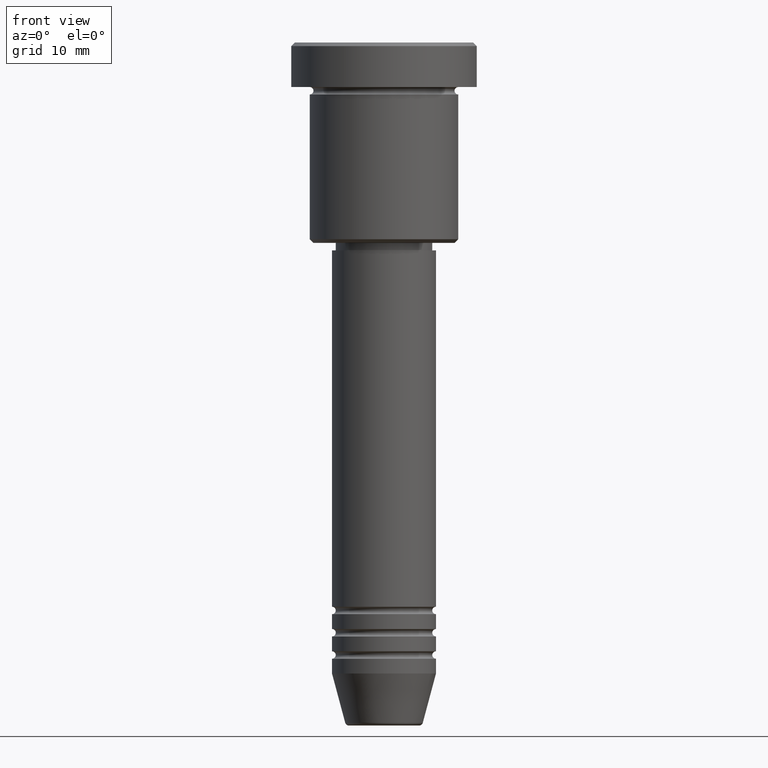
[diagram: clean part render]
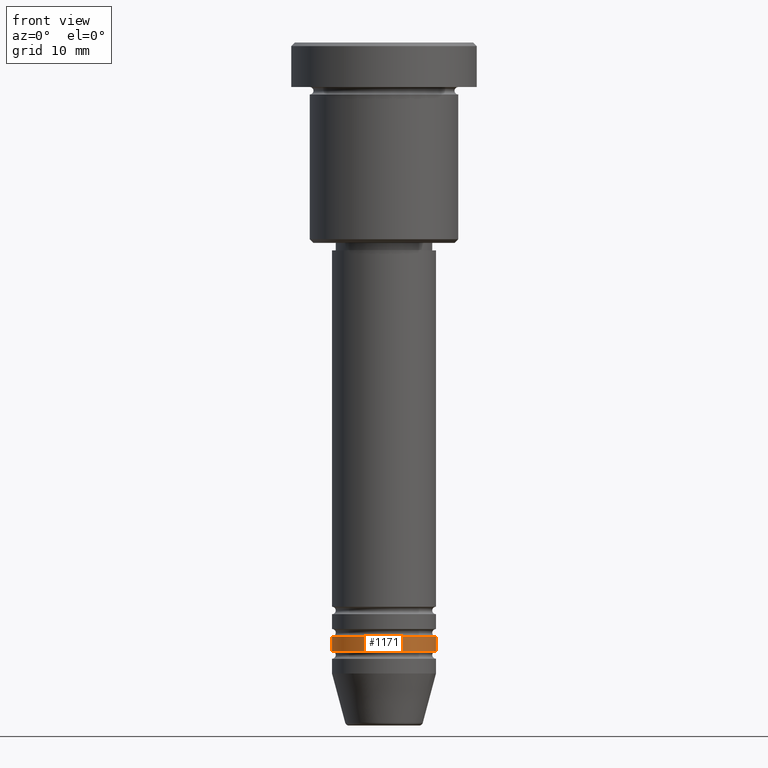
[diagram: same view with one face highlighted and labeled with its STEP entity id]
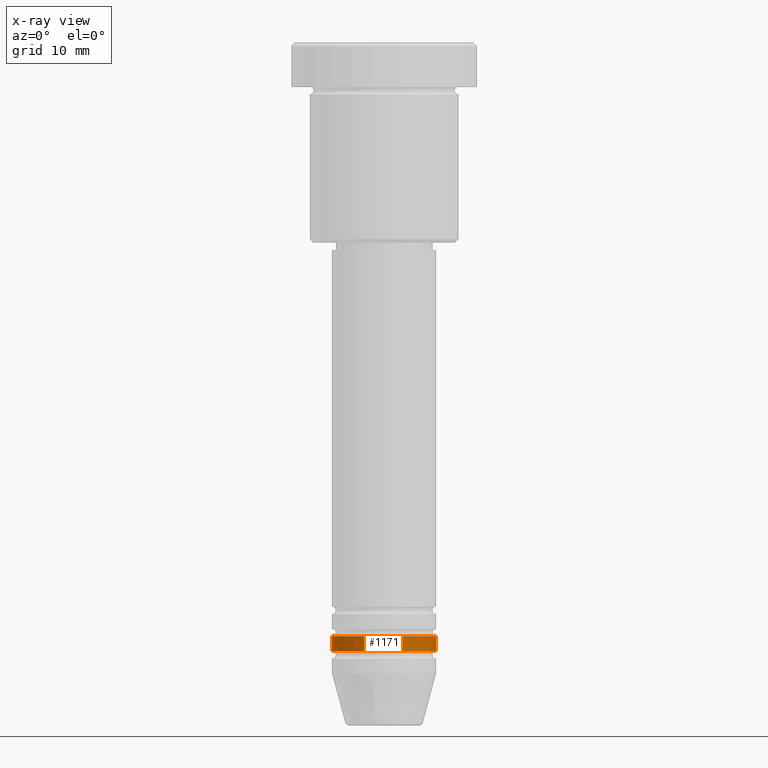
[diagram: x-ray of the same camera — body ghosted, the highlighted face saturated]
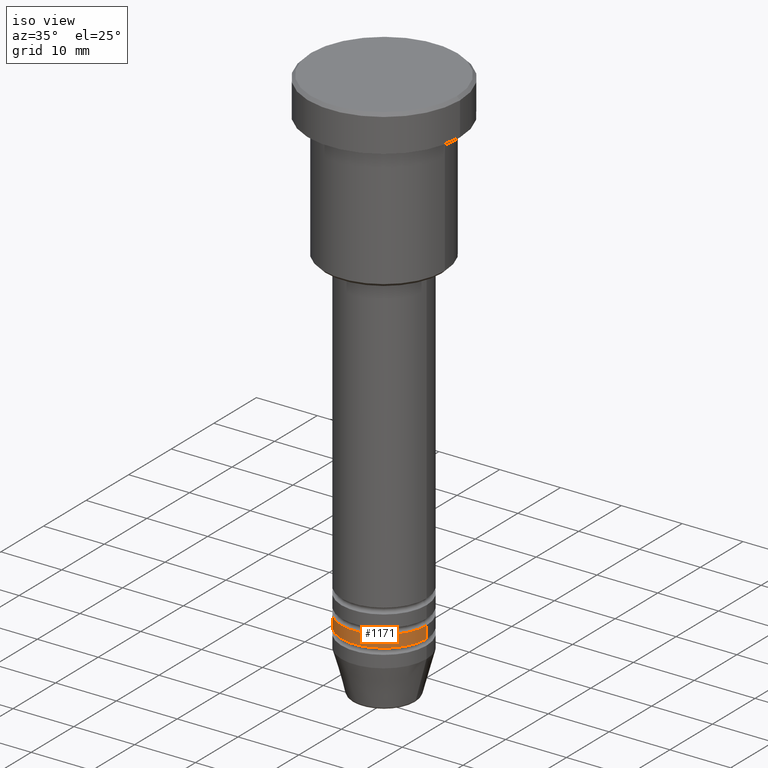
[diagram: same view with one face highlighted and labeled with its STEP entity id]
A machine part, front view. The second image highlights one B-rep face of the part: STEP entity #1171.
The next image is the same camera in x-ray: the body ghosted, the highlighted face saturated — about 0% of this face is hidden behind the body in this view.
A second angle (iso view) of the same face is appended — the face is thin or edge-on in the first view.
In plain terms, the highlighted cylindrical surface (partial cylindrical patch) has radius 7 mm, axis along (-0, -0, 1).
Its self-contained STEP definition (entity closure, byte-faithful):
#7 = EDGE_CURVE ( 'NONE', #562, #1108, #1101, .T. ) ;
#45 = DIRECTION ( 'NONE',  ( 1.000000000000000000, 0.000000000000000000, 0.000000000000000000 ) ) ;
#67 = LINE ( 'NONE', #1150, #336 ) ;
#69 = FACE_OUTER_BOUND ( 'NONE', #101, .T. ) ;
#81 = CARTESIAN_POINT ( 'NONE',  ( -7.000000000000000000, 8.572527594031473190E-16, -79.99999999999997158 ) ) ;
#100 = CARTESIAN_POINT ( 'NONE',  ( -7.000000000000000000, 8.572527594031473190E-16, -81.99999999999997158 ) ) ;
#101 = EDGE_LOOP ( 'NONE', ( #192, #268, #383, #511 ) ) ;
#118 = DIRECTION ( 'NONE',  ( -0.000000000000000000, -0.000000000000000000, 1.000000000000000000 ) ) ;
#140 = DIRECTION ( 'NONE',  ( -0.000000000000000000, -0.000000000000000000, 1.000000000000000000 ) ) ;
#141 = EDGE_CURVE ( 'NONE', #226, #1108, #67, .T. ) ;
#180 = AXIS2_PLACEMENT_3D ( 'NONE', #944, #118, #302 ) ;
#192 = ORIENTED_EDGE ( 'NONE', *, *, #698, .F. ) ;
#198 = DIRECTION ( 'NONE',  ( -0.000000000000000000, -0.000000000000000000, 1.000000000000000000 ) ) ;
#213 = DIRECTION ( 'NONE',  ( -0.000000000000000000, -0.000000000000000000, 1.000000000000000000 ) ) ;
#226 = VERTEX_POINT ( 'NONE', #521 ) ;
#253 = CARTESIAN_POINT ( 'NONE',  ( 0.000000000000000000, 0.000000000000000000, 0.000000000000000000 ) ) ;
#268 = ORIENTED_EDGE ( 'NONE', *, *, #707, .T. ) ;
#302 = DIRECTION ( 'NONE',  ( 1.000000000000000000, 0.000000000000000000, 0.000000000000000000 ) ) ;
#336 = VECTOR ( 'NONE', #349, 1000.000000000000000 ) ;
#349 = DIRECTION ( 'NONE',  ( -0.000000000000000000, -0.000000000000000000, 1.000000000000000000 ) ) ;
#383 = ORIENTED_EDGE ( 'NONE', *, *, #141, .T. ) ;
#511 = ORIENTED_EDGE ( 'NONE', *, *, #7, .F. ) ;
#521 = CARTESIAN_POINT ( 'NONE',  ( 7.000000000000000000, 0.000000000000000000, -81.99999999999997158 ) ) ;
#534 = AXIS2_PLACEMENT_3D ( 'NONE', #253, #140, #45 ) ;
#562 = VERTEX_POINT ( 'NONE', #81 ) ;
#587 = CARTESIAN_POINT ( 'NONE',  ( -7.000000000000000000, 8.572527594031473190E-16, 0.000000000000000000 ) ) ;
#612 = VERTEX_POINT ( 'NONE', #100 ) ;
#698 = EDGE_CURVE ( 'NONE', #612, #562, #936, .T. ) ;
#707 = EDGE_CURVE ( 'NONE', #612, #226, #711, .T. ) ;
#711 = CIRCLE ( 'NONE', #805, 7.000000000000000000 ) ;
#758 = CARTESIAN_POINT ( 'NONE',  ( 0.000000000000000000, 0.000000000000000000, -81.99999999999997158 ) ) ;
#805 = AXIS2_PLACEMENT_3D ( 'NONE', #758, #213, #1029 ) ;
#873 = CYLINDRICAL_SURFACE ( 'NONE', #534, 7.000000000000000000 ) ;
#936 = LINE ( 'NONE', #587, #1143 ) ;
#944 = CARTESIAN_POINT ( 'NONE',  ( 0.000000000000000000, 0.000000000000000000, -79.99999999999997158 ) ) ;
#1029 = DIRECTION ( 'NONE',  ( 1.000000000000000000, 0.000000000000000000, 0.000000000000000000 ) ) ;
#1101 = CIRCLE ( 'NONE', #180, 7.000000000000000000 ) ;
#1108 = VERTEX_POINT ( 'NONE', #1144 ) ;
#1143 = VECTOR ( 'NONE', #198, 1000.000000000000000 ) ;
#1144 = CARTESIAN_POINT ( 'NONE',  ( 7.000000000000000000, 0.000000000000000000, -79.99999999999997158 ) ) ;
#1150 = CARTESIAN_POINT ( 'NONE',  ( 7.000000000000000000, 0.000000000000000000, 0.000000000000000000 ) ) ;
#1171 = ADVANCED_FACE ( 'NONE', ( #69 ), #873, .T. ) ;